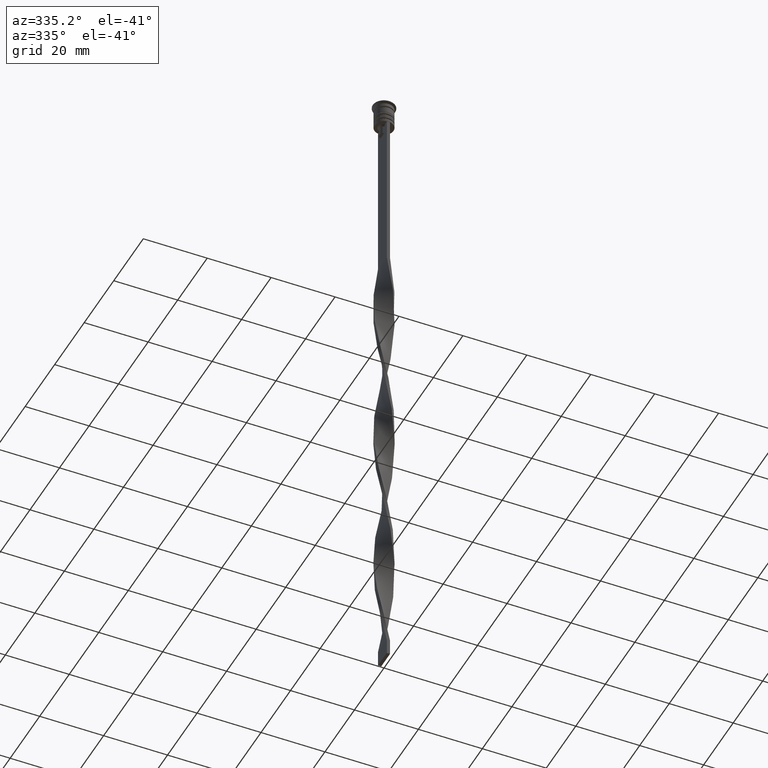
[diagram: clean part render]
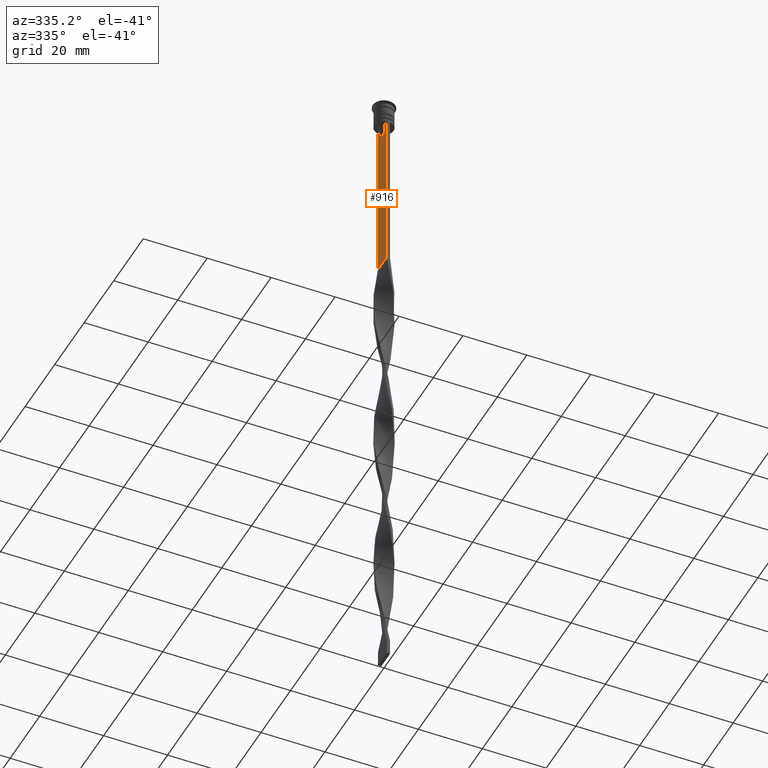
[diagram: same view with one face highlighted and labeled with its STEP entity id]
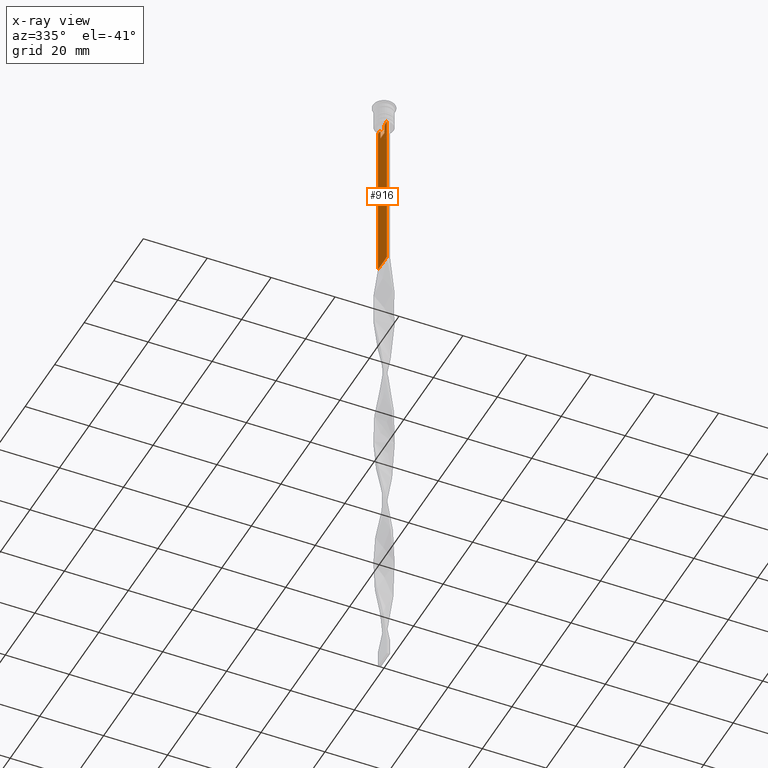
[diagram: x-ray of the same camera — body ghosted, the highlighted face saturated]
A machine part, auxiliary view. The second image highlights one B-rep face of the part: STEP entity #916.
The next image is the same camera in x-ray: the body ghosted, the highlighted face saturated — about 0% of this face is hidden behind the body in this view.
In plain terms, the highlighted planar face has unit normal (-1, 0, 0).
Its self-contained STEP definition (entity closure, byte-faithful):
#6 = LINE ( 'NONE', #3186, #3357 ) ;
#69 = EDGE_CURVE ( 'NONE', #1004, #2015, #1452, .T. ) ;
#131 = EDGE_CURVE ( 'NONE', #2019, #1004, #3585, .T. ) ;
#142 = CARTESIAN_POINT ( 'NONE',  ( -0.5000000000000001110, -3.000000000000000000, -7.500000000000000000 ) ) ;
#161 = ORIENTED_EDGE ( 'NONE', *, *, #2598, .F. ) ;
#182 = LINE ( 'NONE', #2508, #1667 ) ;
#213 = CARTESIAN_POINT ( 'NONE',  ( -0.5000000000000001110, 1.399999999999997691, -10.49999999999999822 ) ) ;
#220 = CARTESIAN_POINT ( 'NONE',  ( -0.5000000000000001110, -3.000000000000000000, -7.500000000000000000 ) ) ;
#225 = VERTEX_POINT ( 'NONE', #1979 ) ;
#260 = DIRECTION ( 'NONE',  ( -0.000000000000000000, -0.000000000000000000, 1.000000000000000000 ) ) ;
#386 = LINE ( 'NONE', #683, #669 ) ;
#400 = CARTESIAN_POINT ( 'NONE',  ( -0.5000000000000001110, -3.000000000000000000, -1.417237469701779329 ) ) ;
#421 = DIRECTION ( 'NONE',  ( 0.000000000000000000, 1.000000000000000000, 0.000000000000000000 ) ) ;
#461 = DIRECTION ( 'NONE',  ( 0.000000000000000000, -1.000000000000000000, 0.000000000000000000 ) ) ;
#480 = DIRECTION ( 'NONE',  ( 0.000000000000000000, -1.000000000000000000, 0.000000000000000000 ) ) ;
#502 = DIRECTION ( 'NONE',  ( 0.000000000000000000, -1.000000000000000000, 0.000000000000000000 ) ) ;
#549 = VECTOR ( 'NONE', #1945, 1000.000000000000000 ) ;
#564 = VERTEX_POINT ( 'NONE', #3054 ) ;
#584 = CARTESIAN_POINT ( 'NONE',  ( -0.5000000000000001110, -3.000000000000000000, -1.417237469701779329 ) ) ;
#633 = CARTESIAN_POINT ( 'NONE',  ( -0.5000000000000001110, -1.307669683062199217, -8.000000000000000000 ) ) ;
#641 = CARTESIAN_POINT ( 'NONE',  ( -0.5000000000000001110, -1.484307477388859153, -7.835011508197190722 ) ) ;
#669 = VECTOR ( 'NONE', #936, 1000.000000000000000 ) ;
#675 = CARTESIAN_POINT ( 'NONE',  ( -0.5000000000000001110, 3.000000000000000000, -58.50000000000000000 ) ) ;
#683 = CARTESIAN_POINT ( 'NONE',  ( -0.5000000000000001110, 3.000000000000000000, -1.417237469701779329 ) ) ;
#916 = ADVANCED_FACE ( 'NONE', ( #3145 ), #3695, .T. ) ;
#936 = DIRECTION ( 'NONE',  ( 0.000000000000000000, 0.000000000000000000, -1.000000000000000000 ) ) ;
#981 = VERTEX_POINT ( 'NONE', #2387 ) ;
#1004 = VERTEX_POINT ( 'NONE', #3262 ) ;
#1032 = LINE ( 'NONE', #2432, #3122 ) ;
#1053 = CARTESIAN_POINT ( 'NONE',  ( -0.5000000000000001110, 1.307669683062199217, -10.49999999999999822 ) ) ;
#1094 = EDGE_CURVE ( 'NONE', #1215, #2671, #3486, .T. ) ;
#1154 = EDGE_CURVE ( 'NONE', #564, #1180, #182, .T. ) ;
#1180 = VERTEX_POINT ( 'NONE', #1053 ) ;
#1215 = VERTEX_POINT ( 'NONE', #1930 ) ;
#1235 = DIRECTION ( 'NONE',  ( 0.000000000000000000, 0.000000000000000000, -1.000000000000000000 ) ) ;
#1279 = VERTEX_POINT ( 'NONE', #1959 ) ;
#1452 = LINE ( 'NONE', #2247, #549 ) ;
#1492 = CARTESIAN_POINT ( 'NONE',  ( -0.5000000000000001110, -1.659011726860414093, -7.667884880598472286 ) ) ;
#1606 = ORIENTED_EDGE ( 'NONE', *, *, #3225, .F. ) ;
#1643 = LINE ( 'NONE', #213, #1795 ) ;
#1662 = DIRECTION ( 'NONE',  ( -1.000000000000000000, 0.000000000000000000, 0.000000000000000000 ) ) ;
#1667 = VECTOR ( 'NONE', #1874, 1000.000000000000000 ) ;
#1719 = ORIENTED_EDGE ( 'NONE', *, *, #3178, .F. ) ;
#1791 = CARTESIAN_POINT ( 'NONE',  ( -0.5000000000000001110, 3.000000000000000000, -7.500000000000000000 ) ) ;
#1795 = VECTOR ( 'NONE', #461, 1000.000000000000000 ) ;
#1817 = EDGE_LOOP ( 'NONE', ( #2946, #1719, #2465, #2341, #3515, #2151, #161, #2697, #2090, #2516, #1606, #2981 ) ) ;
#1840 = EDGE_CURVE ( 'NONE', #2671, #3594, #3546, .T. ) ;
#1859 = VECTOR ( 'NONE', #1235, 1000.000000000000000 ) ;
#1874 = DIRECTION ( 'NONE',  ( 0.000000000000000000, 0.000000000000000000, -1.000000000000000000 ) ) ;
#1930 = CARTESIAN_POINT ( 'NONE',  ( -0.5000000000000001110, -3.000000000000000000, -7.500000000000000000 ) ) ;
#1945 = DIRECTION ( 'NONE',  ( 0.000000000000000000, -1.000000000000000000, 0.000000000000000000 ) ) ;
#1959 = CARTESIAN_POINT ( 'NONE',  ( -0.5000000000000001110, -1.307669683062199217, -10.49999999999999822 ) ) ;
#1979 = CARTESIAN_POINT ( 'NONE',  ( -0.5000000000000001110, 1.833030277982335532, -7.500000000000000000 ) ) ;
#1993 = CARTESIAN_POINT ( 'NONE',  ( -0.5000000000000001110, -3.000000000000000000, -58.50000000000000000 ) ) ;
#2015 = VERTEX_POINT ( 'NONE', #2047 ) ;
#2019 = VERTEX_POINT ( 'NONE', #633 ) ;
#2047 = CARTESIAN_POINT ( 'NONE',  ( -0.5000000000000001110, -2.856571371417139904, -7.500000000000000000 ) ) ;
#2090 = ORIENTED_EDGE ( 'NONE', *, *, #131, .F. ) ;
#2111 = CARTESIAN_POINT ( 'NONE',  ( -0.5000000000000001110, -3.000000000000000000, -58.50000000000000000 ) ) ;
#2151 = ORIENTED_EDGE ( 'NONE', *, *, #1094, .F. ) ;
#2208 = VECTOR ( 'NONE', #480, 1000.000000000000000 ) ;
#2247 = CARTESIAN_POINT ( 'NONE',  ( -0.5000000000000001110, -3.000000000000000000, -7.500000000000000000 ) ) ;
#2341 = ORIENTED_EDGE ( 'NONE', *, *, #2841, .T. ) ;
#2353 = B_SPLINE_CURVE_WITH_KNOTS ( 'NONE', 3,
 ( #3032, #3557, #3274, #3619 ),
 .UNSPECIFIED., .F., .F.,
 ( 4, 4 ),
 ( 0.003278537493109840491, 0.004003794023484932504 ),
 .UNSPECIFIED. ) ;
#2387 = CARTESIAN_POINT ( 'NONE',  ( -0.5000000000000001110, 2.856571371417139904, -7.500000000000000000 ) ) ;
#2396 = AXIS2_PLACEMENT_3D ( 'NONE', #584, #1662, #2574 ) ;
#2432 = CARTESIAN_POINT ( 'NONE',  ( -0.5000000000000001110, -3.000000000000000000, -7.500000000000000000 ) ) ;
#2456 = VECTOR ( 'NONE', #421, 1000.000000000000000 ) ;
#2465 = ORIENTED_EDGE ( 'NONE', *, *, #2546, .F. ) ;
#2508 = CARTESIAN_POINT ( 'NONE',  ( -0.5000000000000001110, 1.307669683062199217, 0.000000000000000000 ) ) ;
#2516 = ORIENTED_EDGE ( 'NONE', *, *, #2715, .F. ) ;
#2546 = EDGE_CURVE ( 'NONE', #2914, #981, #3026, .T. ) ;
#2574 = DIRECTION ( 'NONE',  ( 0.000000000000000000, 0.000000000000000000, 1.000000000000000000 ) ) ;
#2598 = EDGE_CURVE ( 'NONE', #2015, #1215, #2716, .T. ) ;
#2671 = VERTEX_POINT ( 'NONE', #1993 ) ;
#2697 = ORIENTED_EDGE ( 'NONE', *, *, #69, .F. ) ;
#2715 = EDGE_CURVE ( 'NONE', #1279, #2019, #6, .T. ) ;
#2716 = LINE ( 'NONE', #220, #3602 ) ;
#2766 = DIRECTION ( 'NONE',  ( 0.000000000000000000, -1.000000000000000000, 0.000000000000000000 ) ) ;
#2841 = EDGE_CURVE ( 'NONE', #2914, #3594, #386, .T. ) ;
#2890 = CARTESIAN_POINT ( 'NONE',  ( -0.5000000000000001110, -1.833030277982335532, -7.500000000000000000 ) ) ;
#2914 = VERTEX_POINT ( 'NONE', #1791 ) ;
#2946 = ORIENTED_EDGE ( 'NONE', *, *, #3707, .F. ) ;
#2981 = ORIENTED_EDGE ( 'NONE', *, *, #1154, .F. ) ;
#3026 = LINE ( 'NONE', #142, #2208 ) ;
#3032 = CARTESIAN_POINT ( 'NONE',  ( -0.5000000000000001110, 1.833030277982335532, -7.500000000000000000 ) ) ;
#3054 = CARTESIAN_POINT ( 'NONE',  ( -0.5000000000000001110, 1.307669683062199217, -8.000000000000000000 ) ) ;
#3122 = VECTOR ( 'NONE', #2766, 1000.000000000000000 ) ;
#3145 = FACE_OUTER_BOUND ( 'NONE', #1817, .T. ) ;
#3178 = EDGE_CURVE ( 'NONE', #981, #225, #1032, .T. ) ;
#3186 = CARTESIAN_POINT ( 'NONE',  ( -0.5000000000000001110, -1.307669683062199217, 0.000000000000000000 ) ) ;
#3225 = EDGE_CURVE ( 'NONE', #1180, #1279, #1643, .T. ) ;
#3262 = CARTESIAN_POINT ( 'NONE',  ( -0.5000000000000001110, -1.833030277982335532, -7.500000000000000000 ) ) ;
#3274 = CARTESIAN_POINT ( 'NONE',  ( -0.5000000000000001110, 1.484355510416485391, -7.834966642958598015 ) ) ;
#3357 = VECTOR ( 'NONE', #260, 1000.000000000000000 ) ;
#3359 = CARTESIAN_POINT ( 'NONE',  ( -0.5000000000000001110, -1.307669683062199217, -8.000000000000000000 ) ) ;
#3486 = LINE ( 'NONE', #400, #1859 ) ;
#3515 = ORIENTED_EDGE ( 'NONE', *, *, #1840, .F. ) ;
#3546 = LINE ( 'NONE', #2111, #2456 ) ;
#3557 = CARTESIAN_POINT ( 'NONE',  ( -0.5000000000000001110, 1.659046061654642523, -7.667851756010361619 ) ) ;
#3585 = B_SPLINE_CURVE_WITH_KNOTS ( 'NONE', 3,
 ( #3359, #641, #1492, #2890 ),
 .UNSPECIFIED., .F., .F.,
 ( 4, 4 ),
 ( 0.007225659348748070081, 0.007950554640278040958 ),
 .UNSPECIFIED. ) ;
#3594 = VERTEX_POINT ( 'NONE', #675 ) ;
#3602 = VECTOR ( 'NONE', #502, 1000.000000000000000 ) ;
#3619 = CARTESIAN_POINT ( 'NONE',  ( -0.5000000000000001110, 1.307669683062199217, -8.000000000000000000 ) ) ;
#3695 = PLANE ( 'NONE',  #2396 ) ;
#3707 = EDGE_CURVE ( 'NONE', #225, #564, #2353, .T. ) ;